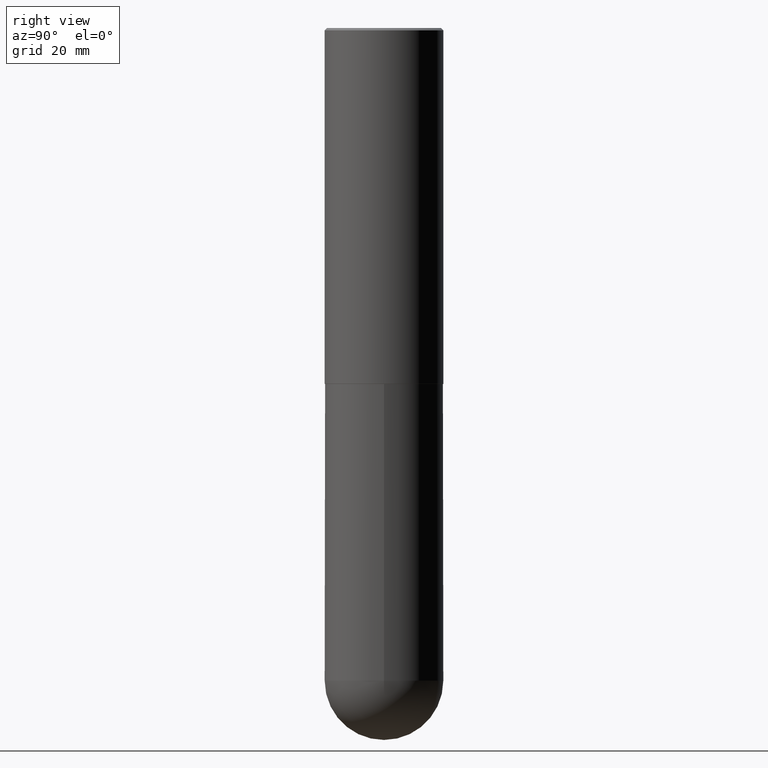
[diagram: clean part render]
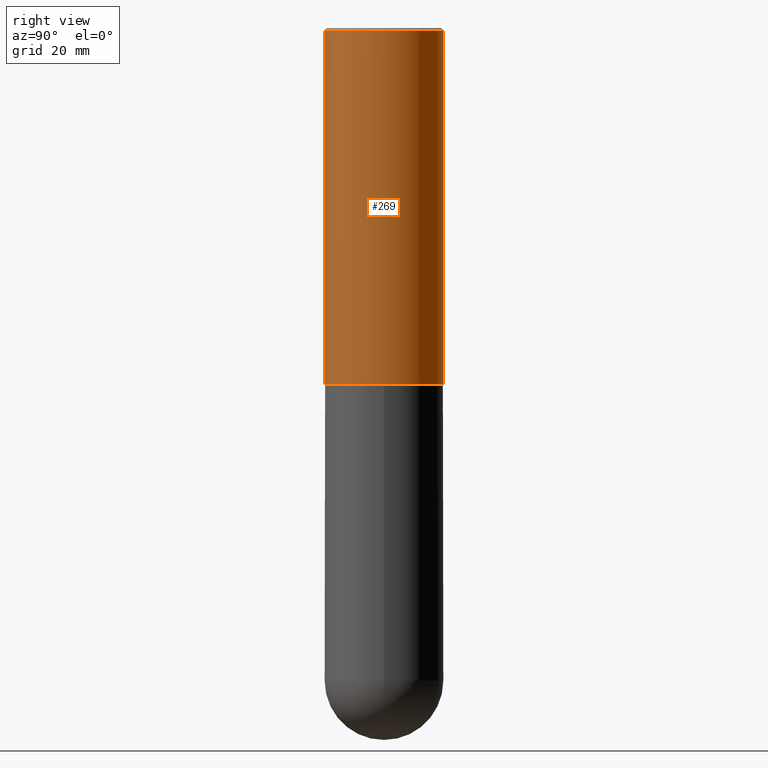
[diagram: same view with one face highlighted and labeled with its STEP entity id]
A machine part, right view. The second image highlights one B-rep face of the part: STEP entity #269.
In plain terms, the highlighted cylindrical surface (partial cylindrical patch) has radius 12.7 mm, axis along (-0, 0, 1).
Its self-contained STEP definition (entity closure, byte-faithful):
#18 = ORIENTED_EDGE ( 'NONE', *, *, #179, .F. ) ;
#34 = DIRECTION ( 'NONE',  ( -6.982962677686265922E-15, -1.000000000000000000, 3.491643216902136408E-15 ) ) ;
#35 = EDGE_CURVE ( 'NONE', #375, #202, #53, .T. ) ;
#36 = LINE ( 'NONE', #293, #77 ) ;
#42 = FACE_OUTER_BOUND ( 'NONE', #233, .T. ) ;
#53 = CIRCLE ( 'NONE', #186, 0.5000000000000004441 ) ;
#66 = ORIENTED_EDGE ( 'NONE', *, *, #350, .F. ) ;
#71 = DIRECTION ( 'NONE',  ( -6.982962677686265133E-15, -1.000000000000000000, 3.278217592397113101E-15 ) ) ;
#72 = CARTESIAN_POINT ( 'NONE',  ( -3.491481338843062752E-15, -0.5000000000000108802, -2.998999999999998778 ) ) ;
#76 = CARTESIAN_POINT ( 'NONE',  ( 3.491481338843133355E-15, 0.4999999999999999445, -0.02000000000000185310 ) ) ;
#77 = VECTOR ( 'NONE', #397, 39.37007874015748143 ) ;
#110 = CARTESIAN_POINT ( 'NONE',  ( 0.000000000000000000, 0.000000000000000000, 0.000000000000000000 ) ) ;
#133 = DIRECTION ( 'NONE',  ( -2.445032266171692161E-29, 3.492106488988713156E-15, 1.000000000000000000 ) ) ;
#152 = AXIS2_PLACEMENT_3D ( 'NONE', #110, #235, #225 ) ;
#153 = VECTOR ( 'NONE', #133, 39.37007874015748143 ) ;
#154 = CARTESIAN_POINT ( 'NONE',  ( 7.332651766248905611E-29, -1.047282736047715268E-14, -2.999000000000000554 ) ) ;
#168 = CARTESIAN_POINT ( 'NONE',  ( -3.491481338843134539E-15, -0.5000000000000002220, 1.746053244494357170E-15 ) ) ;
#179 = EDGE_CURVE ( 'NONE', #328, #308, #300, .T. ) ;
#186 = AXIS2_PLACEMENT_3D ( 'NONE', #154, #261, #71 ) ;
#191 = CARTESIAN_POINT ( 'NONE',  ( 3.552713678800539584E-15, 0.4999999999999900080, -2.999000000000001886 ) ) ;
#202 = VERTEX_POINT ( 'NONE', #191 ) ;
#225 = DIRECTION ( 'NONE',  ( -6.982962677686265922E-15, -1.000000000000000000, 3.492106488988712762E-15 ) ) ;
#233 = EDGE_LOOP ( 'NONE', ( #306, #265, #18, #66 ) ) ;
#235 = DIRECTION ( 'NONE',  ( -2.445032266171691881E-29, 3.492106488988713156E-15, 1.000000000000000000 ) ) ;
#258 = EDGE_CURVE ( 'NONE', #202, #308, #36, .T. ) ;
#261 = DIRECTION ( 'NONE',  ( -2.445032266171691881E-29, 3.492106488988713156E-15, 1.000000000000000000 ) ) ;
#265 = ORIENTED_EDGE ( 'NONE', *, *, #258, .T. ) ;
#269 = ADVANCED_FACE ( 'NONE', ( #42 ), #364, .T. ) ;
#273 = AXIS2_PLACEMENT_3D ( 'NONE', #356, #322, #34 ) ;
#277 = CARTESIAN_POINT ( 'NONE',  ( -3.430248998885764992E-15, -0.5000000000000001110, -0.01999999999999835937 ) ) ;
#293 = CARTESIAN_POINT ( 'NONE',  ( 3.552713678800501718E-15, 0.5000000000000002220, -1.746053244494357170E-15 ) ) ;
#300 = CIRCLE ( 'NONE', #273, 0.5000000000000000000 ) ;
#306 = ORIENTED_EDGE ( 'NONE', *, *, #35, .T. ) ;
#308 = VERTEX_POINT ( 'NONE', #76 ) ;
#322 = DIRECTION ( 'NONE',  ( -2.445032266171691881E-29, 3.492106488988713156E-15, 1.000000000000000000 ) ) ;
#328 = VERTEX_POINT ( 'NONE', #277 ) ;
#350 = EDGE_CURVE ( 'NONE', #375, #328, #367, .T. ) ;
#356 = CARTESIAN_POINT ( 'NONE',  ( 4.890064532343409545E-31, -6.984212977977462847E-17, -0.02000000000000010797 ) ) ;
#364 = CYLINDRICAL_SURFACE ( 'NONE', #152, 0.5000000000000002220 ) ;
#367 = LINE ( 'NONE', #168, #153 ) ;
#375 = VERTEX_POINT ( 'NONE', #72 ) ;
#397 = DIRECTION ( 'NONE',  ( -2.445032266171692161E-29, 3.492106488988713156E-15, 1.000000000000000000 ) ) ;